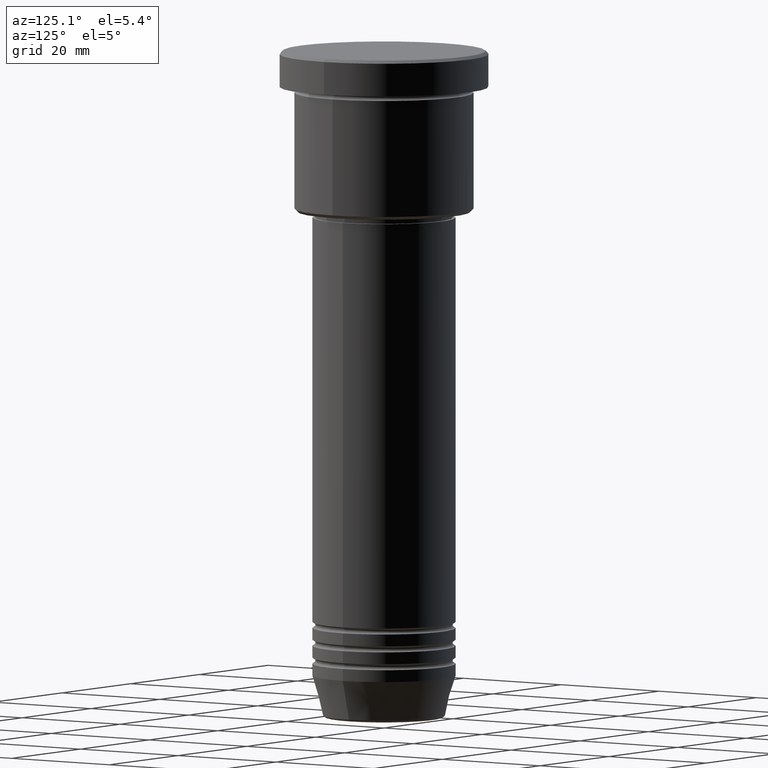
[diagram: clean part render]
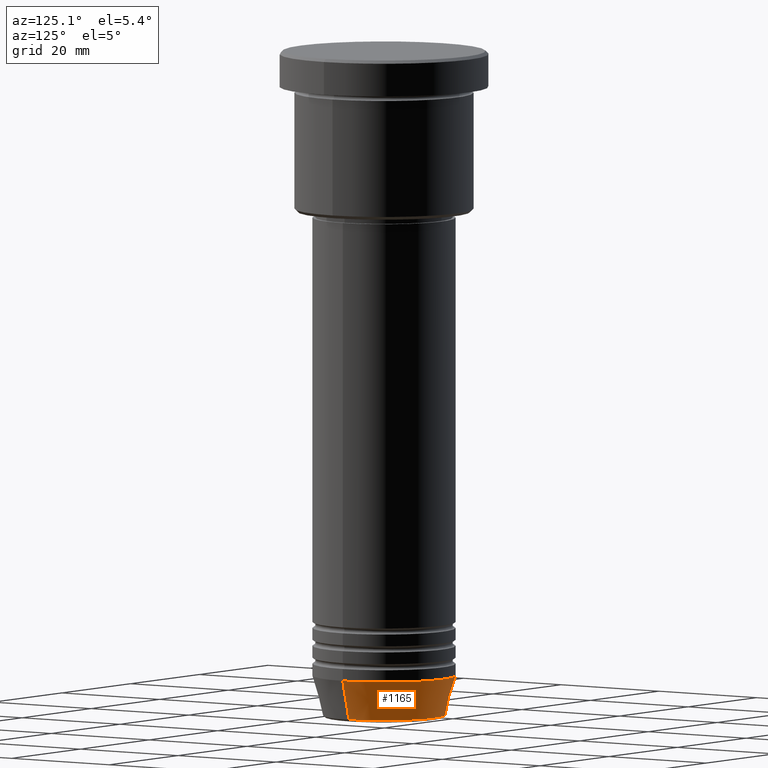
[diagram: same view with one face highlighted and labeled with its STEP entity id]
A machine part, auxiliary view. The second image highlights one B-rep face of the part: STEP entity #1165.
In plain terms, the highlighted conical surface has half-angle 15 deg.
Its self-contained STEP definition (entity closure, byte-faithful):
#22 = VERTEX_POINT ( 'NONE', #1052 ) ;
#30 = CIRCLE ( 'NONE', #1061, 10.22365507213719305 ) ;
#31 = AXIS2_PLACEMENT_3D ( 'NONE', #89, #837, #110 ) ;
#37 = DIRECTION ( 'NONE',  ( -0.000000000000000000, -0.000000000000000000, 1.000000000000000000 ) ) ;
#82 = EDGE_CURVE ( 'NONE', #656, #1051, #1169, .T. ) ;
#89 = CARTESIAN_POINT ( 'NONE',  ( 0.000000000000000000, 0.000000000000000000, -105.0000000000000142 ) ) ;
#110 = DIRECTION ( 'NONE',  ( 1.000000000000000000, 0.000000000000000000, 0.000000000000000000 ) ) ;
#208 = DIRECTION ( 'NONE',  ( 1.000000000000000000, 0.000000000000000000, 0.000000000000000000 ) ) ;
#213 = DIRECTION ( 'NONE',  ( -0.2588190451025213501, 3.169619151431772337E-17, 0.9659258262890680902 ) ) ;
#231 = CARTESIAN_POINT ( 'NONE',  ( -10.22365507213719305, 1.360806402472382744E-15, -111.6294095225512706 ) ) ;
#252 = DIRECTION ( 'NONE',  ( 0.2588190451025213501, 0.000000000000000000, 0.9659258262890680902 ) ) ;
#265 = EDGE_LOOP ( 'NONE', ( #1168, #289, #992, #573 ) ) ;
#289 = ORIENTED_EDGE ( 'NONE', *, *, #910, .T. ) ;
#471 = CARTESIAN_POINT ( 'NONE',  ( 10.22365507213719305, 0.000000000000000000, -111.6294095225512706 ) ) ;
#573 = ORIENTED_EDGE ( 'NONE', *, *, #82, .F. ) ;
#638 = CARTESIAN_POINT ( 'NONE',  ( 12.00000000000000000, 0.000000000000000000, -105.0000000000000142 ) ) ;
#656 = VERTEX_POINT ( 'NONE', #471 ) ;
#679 = CARTESIAN_POINT ( 'NONE',  ( -12.00000000000000000, 1.469576158976823947E-15, -105.0000000000000142 ) ) ;
#795 = EDGE_CURVE ( 'NONE', #1051, #22, #832, .T. ) ;
#832 = CIRCLE ( 'NONE', #1116, 12.00000000000000000 ) ;
#837 = DIRECTION ( 'NONE',  ( -0.000000000000000000, -0.000000000000000000, 1.000000000000000000 ) ) ;
#856 = CARTESIAN_POINT ( 'NONE',  ( 0.000000000000000000, 0.000000000000000000, -111.6294095225512706 ) ) ;
#864 = EDGE_CURVE ( 'NONE', #656, #891, #30, .T. ) ;
#891 = VERTEX_POINT ( 'NONE', #231 ) ;
#910 = EDGE_CURVE ( 'NONE', #891, #22, #1040, .T. ) ;
#946 = DIRECTION ( 'NONE',  ( -0.000000000000000000, -0.000000000000000000, 1.000000000000000000 ) ) ;
#960 = DIRECTION ( 'NONE',  ( 1.000000000000000000, 0.000000000000000000, 0.000000000000000000 ) ) ;
#968 = CARTESIAN_POINT ( 'NONE',  ( 0.000000000000000000, 0.000000000000000000, -105.0000000000000142 ) ) ;
#982 = VECTOR ( 'NONE', #252, 1000.000000000000000 ) ;
#992 = ORIENTED_EDGE ( 'NONE', *, *, #795, .F. ) ;
#1001 = CONICAL_SURFACE ( 'NONE', #31, 12.00000000000000000, 0.2617993877991500740 ) ;
#1028 = FACE_OUTER_BOUND ( 'NONE', #265, .T. ) ;
#1040 = LINE ( 'NONE', #679, #1174 ) ;
#1051 = VERTEX_POINT ( 'NONE', #638 ) ;
#1052 = CARTESIAN_POINT ( 'NONE',  ( -12.00000000000000000, 1.469576158976823947E-15, -105.0000000000000142 ) ) ;
#1061 = AXIS2_PLACEMENT_3D ( 'NONE', #856, #37, #208 ) ;
#1087 = CARTESIAN_POINT ( 'NONE',  ( 12.00000000000000000, 0.000000000000000000, -105.0000000000000142 ) ) ;
#1116 = AXIS2_PLACEMENT_3D ( 'NONE', #968, #946, #960 ) ;
#1165 = ADVANCED_FACE ( 'NONE', ( #1028 ), #1001, .T. ) ;
#1168 = ORIENTED_EDGE ( 'NONE', *, *, #864, .T. ) ;
#1169 = LINE ( 'NONE', #1087, #982 ) ;
#1174 = VECTOR ( 'NONE', #213, 1000.000000000000000 ) ;